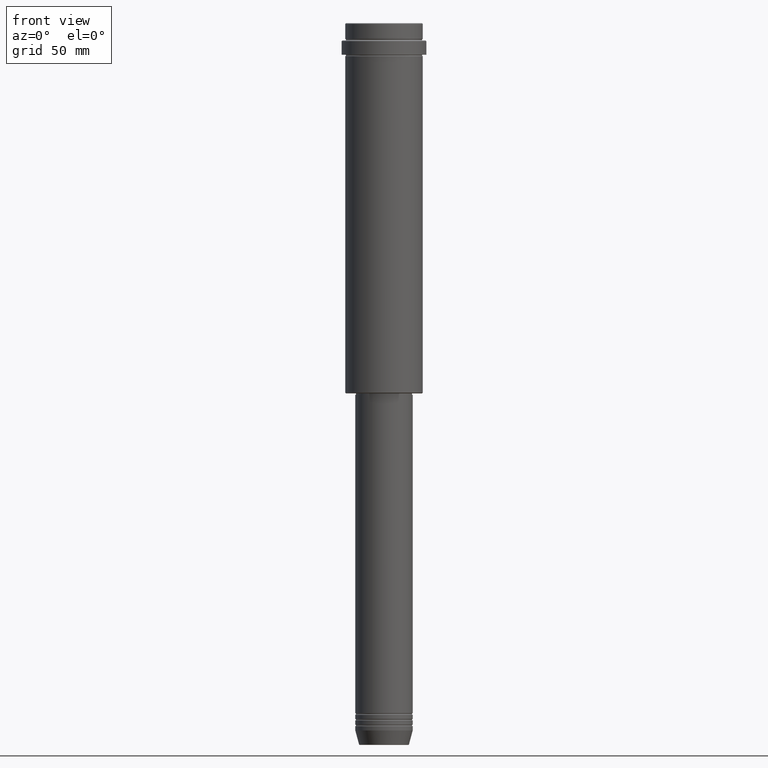
[diagram: clean part render]
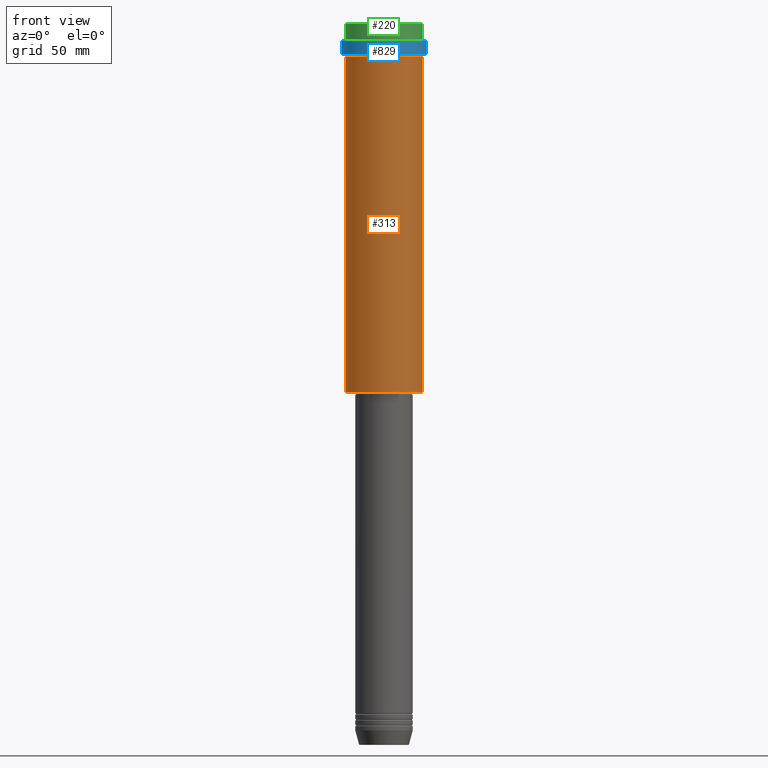
[diagram: same view with three faces highlighted in distinct colors, each labeled with its STEP entity id]
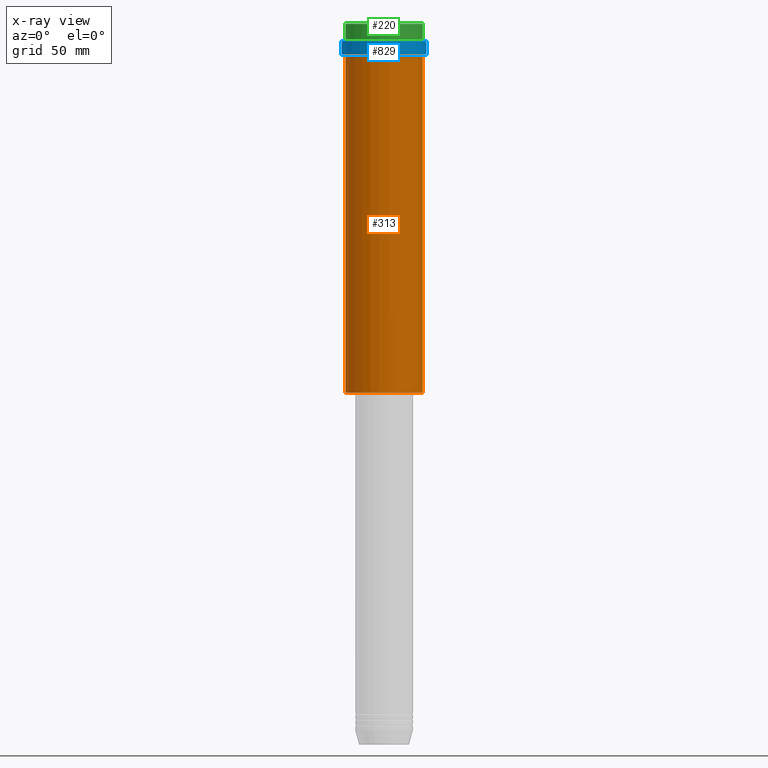
[diagram: x-ray of the same camera — body ghosted, the three highlighted faces saturated]
A machine part, front view with three faces highlighted in distinct colors.
The next image is the same camera in x-ray (body ghosted, the three faces saturated) — at least one of them is partly hidden behind the body in this view.
Their STEP definitions:

[orange] entity #313 — the highlighted cylindrical surface (partial cylindrical patch) has radius 27 mm, axis along (-0, -0, 1).
#1 = AXIS2_PLACEMENT_3D ( 'NONE', #871, #1086, #245 ) ;
#69 = VERTEX_POINT ( 'NONE', #692 ) ;
#72 = VERTEX_POINT ( 'NONE', #1332 ) ;
#117 = CARTESIAN_POINT ( 'NONE',  ( 27.00000000000000355, 0.000000000000000000, 0.000000000000000000 ) ) ;
#194 = CARTESIAN_POINT ( 'NONE',  ( 0.000000000000000000, 0.000000000000000000, -23.00000000000001421 ) ) ;
#203 = DIRECTION ( 'NONE',  ( -0.000000000000000000, -0.000000000000000000, 1.000000000000000000 ) ) ;
#229 = DIRECTION ( 'NONE',  ( -0.000000000000000000, -0.000000000000000000, 1.000000000000000000 ) ) ;
#245 = DIRECTION ( 'NONE',  ( -1.000000000000000000, 0.000000000000000000, 0.000000000000000000 ) ) ;
#263 = AXIS2_PLACEMENT_3D ( 'NONE', #194, #203, #306 ) ;
#306 = DIRECTION ( 'NONE',  ( 1.000000000000000000, 0.000000000000000000, 0.000000000000000000 ) ) ;
#313 = ADVANCED_FACE ( 'NONE', ( #1409 ), #429, .T. ) ;
#317 = ORIENTED_EDGE ( 'NONE', *, *, #1243, .F. ) ;
#389 = VECTOR ( 'NONE', #444, 1000.000000000000000 ) ;
#394 = VECTOR ( 'NONE', #229, 1000.000000000000000 ) ;
#412 = VERTEX_POINT ( 'NONE', #465 ) ;
#429 = CYLINDRICAL_SURFACE ( 'NONE', #722, 27.00000000000000355 ) ;
#444 = DIRECTION ( 'NONE',  ( -0.000000000000000000, -0.000000000000000000, 1.000000000000000000 ) ) ;
#452 = ORIENTED_EDGE ( 'NONE', *, *, #1089, .F. ) ;
#465 = CARTESIAN_POINT ( 'NONE',  ( -27.00000000000000355, 3.306546357697854128E-15, -23.00000000000001421 ) ) ;
#468 = CARTESIAN_POINT ( 'NONE',  ( -27.00000000000000355, 3.306546357697854128E-15, 0.000000000000000000 ) ) ;
#575 = LINE ( 'NONE', #468, #389 ) ;
#609 = CIRCLE ( 'NONE', #1, 27.00000000000000355 ) ;
#692 = CARTESIAN_POINT ( 'NONE',  ( 27.00000000000000355, 0.000000000000000000, -23.00000000000001421 ) ) ;
#722 = AXIS2_PLACEMENT_3D ( 'NONE', #1302, #846, #1081 ) ;
#729 = EDGE_LOOP ( 'NONE', ( #317, #1311, #738, #452 ) ) ;
#738 = ORIENTED_EDGE ( 'NONE', *, *, #1338, .T. ) ;
#788 = CARTESIAN_POINT ( 'NONE',  ( 27.00000000000000355, 0.000000000000000000, -257.5000000000000568 ) ) ;
#846 = DIRECTION ( 'NONE',  ( -0.000000000000000000, -0.000000000000000000, 1.000000000000000000 ) ) ;
#862 = CIRCLE ( 'NONE', #263, 27.00000000000000355 ) ;
#871 = CARTESIAN_POINT ( 'NONE',  ( 0.000000000000000000, 0.000000000000000000, -257.5000000000000568 ) ) ;
#1081 = DIRECTION ( 'NONE',  ( 1.000000000000000000, 0.000000000000000000, 0.000000000000000000 ) ) ;
#1086 = DIRECTION ( 'NONE',  ( -0.000000000000000000, -0.000000000000000000, 1.000000000000000000 ) ) ;
#1089 = EDGE_CURVE ( 'NONE', #412, #69, #862, .T. ) ;
#1220 = LINE ( 'NONE', #117, #394 ) ;
#1243 = EDGE_CURVE ( 'NONE', #72, #412, #575, .T. ) ;
#1302 = CARTESIAN_POINT ( 'NONE',  ( 0.000000000000000000, 0.000000000000000000, 0.000000000000000000 ) ) ;
#1311 = ORIENTED_EDGE ( 'NONE', *, *, #1387, .T. ) ;
#1318 = VERTEX_POINT ( 'NONE', #788 ) ;
#1332 = CARTESIAN_POINT ( 'NONE',  ( -27.00000000000000355, 3.306546357697854128E-15, -257.5000000000000568 ) ) ;
#1338 = EDGE_CURVE ( 'NONE', #1318, #69, #1220, .T. ) ;
#1387 = EDGE_CURVE ( 'NONE', #72, #1318, #609, .T. ) ;
#1409 = FACE_OUTER_BOUND ( 'NONE', #729, .T. ) ;

[blue] entity #829 — the highlighted cylindrical surface (partial cylindrical patch) has radius 29.5 mm, axis along (-0, -0, 1).
#3 = CARTESIAN_POINT ( 'NONE',  ( 29.49999999999999645, 0.000000000000000000, -22.00000000000000711 ) ) ;
#37 = CARTESIAN_POINT ( 'NONE',  ( -29.50000000000000000, 3.612708057484691604E-15, 0.000000000000000000 ) ) ;
#41 = ORIENTED_EDGE ( 'NONE', *, *, #808, .T. ) ;
#68 = CARTESIAN_POINT ( 'NONE',  ( 29.50000000000000000, 0.000000000000000000, 0.000000000000000000 ) ) ;
#85 = DIRECTION ( 'NONE',  ( 0.000000000000000000, 0.000000000000000000, -1.000000000000000000 ) ) ;
#98 = DIRECTION ( 'NONE',  ( 1.000000000000000000, 0.000000000000000000, 0.000000000000000000 ) ) ;
#187 = ORIENTED_EDGE ( 'NONE', *, *, #1309, .F. ) ;
#251 = LINE ( 'NONE', #37, #323 ) ;
#254 = CARTESIAN_POINT ( 'NONE',  ( 29.50000000000000000, 0.000000000000000000, -12.50000000000000355 ) ) ;
#323 = VECTOR ( 'NONE', #999, 1000.000000000000000 ) ;
#416 = VERTEX_POINT ( 'NONE', #254 ) ;
#428 = FACE_OUTER_BOUND ( 'NONE', #716, .T. ) ;
#501 = DIRECTION ( 'NONE',  ( -0.000000000000000000, -0.000000000000000000, 1.000000000000000000 ) ) ;
#506 = CIRCLE ( 'NONE', #773, 29.50000000000000000 ) ;
#626 = CARTESIAN_POINT ( 'NONE',  ( 0.000000000000000000, 0.000000000000000000, -12.50000000000000355 ) ) ;
#716 = EDGE_LOOP ( 'NONE', ( #187, #41, #1121, #737 ) ) ;
#735 = EDGE_CURVE ( 'NONE', #416, #873, #506, .T. ) ;
#737 = ORIENTED_EDGE ( 'NONE', *, *, #735, .T. ) ;
#759 = VERTEX_POINT ( 'NONE', #845 ) ;
#773 = AXIS2_PLACEMENT_3D ( 'NONE', #626, #85, #1048 ) ;
#808 = EDGE_CURVE ( 'NONE', #759, #1203, #1172, .T. ) ;
#829 = ADVANCED_FACE ( 'NONE', ( #428 ), #849, .T. ) ;
#845 = CARTESIAN_POINT ( 'NONE',  ( -29.49999999999999645, 3.612708057484690815E-15, -22.00000000000000711 ) ) ;
#849 = CYLINDRICAL_SURFACE ( 'NONE', #902, 29.50000000000000000 ) ;
#866 = CARTESIAN_POINT ( 'NONE',  ( 0.000000000000000000, 0.000000000000000000, -22.00000000000000711 ) ) ;
#873 = VERTEX_POINT ( 'NONE', #892 ) ;
#892 = CARTESIAN_POINT ( 'NONE',  ( -29.50000000000000000, 3.612708057484691604E-15, -12.50000000000000355 ) ) ;
#902 = AXIS2_PLACEMENT_3D ( 'NONE', #1390, #1179, #1156 ) ;
#924 = VECTOR ( 'NONE', #501, 1000.000000000000000 ) ;
#999 = DIRECTION ( 'NONE',  ( -0.000000000000000000, -0.000000000000000000, 1.000000000000000000 ) ) ;
#1028 = LINE ( 'NONE', #68, #924 ) ;
#1048 = DIRECTION ( 'NONE',  ( 1.000000000000000000, 0.000000000000000000, 0.000000000000000000 ) ) ;
#1060 = EDGE_CURVE ( 'NONE', #1203, #416, #1028, .T. ) ;
#1121 = ORIENTED_EDGE ( 'NONE', *, *, #1060, .T. ) ;
#1156 = DIRECTION ( 'NONE',  ( 1.000000000000000000, 0.000000000000000000, 0.000000000000000000 ) ) ;
#1172 = CIRCLE ( 'NONE', #1226, 29.49999999999999645 ) ;
#1179 = DIRECTION ( 'NONE',  ( -0.000000000000000000, -0.000000000000000000, 1.000000000000000000 ) ) ;
#1203 = VERTEX_POINT ( 'NONE', #3 ) ;
#1226 = AXIS2_PLACEMENT_3D ( 'NONE', #866, #1406, #98 ) ;
#1309 = EDGE_CURVE ( 'NONE', #759, #873, #251, .T. ) ;
#1390 = CARTESIAN_POINT ( 'NONE',  ( 0.000000000000000000, 0.000000000000000000, 0.000000000000000000 ) ) ;
#1406 = DIRECTION ( 'NONE',  ( -0.000000000000000000, -0.000000000000000000, 1.000000000000000000 ) ) ;

[green] entity #220 — the highlighted cylindrical surface (partial cylindrical patch) has radius 27 mm, axis along (-0, -0, 1).
#17 = LINE ( 'NONE', #669, #1056 ) ;
#28 = CIRCLE ( 'NONE', #1224, 27.00000000000000355 ) ;
#153 = EDGE_CURVE ( 'NONE', #859, #852, #935, .T. ) ;
#202 = DIRECTION ( 'NONE',  ( 0.000000000000000000, 0.000000000000000000, -1.000000000000000000 ) ) ;
#208 = DIRECTION ( 'NONE',  ( -0.000000000000000000, -0.000000000000000000, 1.000000000000000000 ) ) ;
#209 = DIRECTION ( 'NONE',  ( 1.000000000000000000, 0.000000000000000000, 0.000000000000000000 ) ) ;
#220 = ADVANCED_FACE ( 'NONE', ( #927 ), #222, .T. ) ;
#222 = CYLINDRICAL_SURFACE ( 'NONE', #390, 27.00000000000000355 ) ;
#282 = CIRCLE ( 'NONE', #1296, 27.00000000000000355 ) ;
#303 = EDGE_CURVE ( 'NONE', #965, #852, #28, .T. ) ;
#309 = DIRECTION ( 'NONE',  ( 1.000000000000000000, 0.000000000000000000, 0.000000000000000000 ) ) ;
#390 = AXIS2_PLACEMENT_3D ( 'NONE', #466, #730, #209 ) ;
#433 = EDGE_CURVE ( 'NONE', #665, #965, #17, .T. ) ;
#436 = CARTESIAN_POINT ( 'NONE',  ( 0.000000000000000000, 0.000000000000000000, -0.4999999999999796274 ) ) ;
#448 = EDGE_LOOP ( 'NONE', ( #529, #1375, #812, #493 ) ) ;
#466 = CARTESIAN_POINT ( 'NONE',  ( 0.000000000000000000, 0.000000000000000000, 0.000000000000000000 ) ) ;
#493 = ORIENTED_EDGE ( 'NONE', *, *, #303, .T. ) ;
#519 = CARTESIAN_POINT ( 'NONE',  ( 0.000000000000000000, 0.000000000000000000, -11.00000000000000178 ) ) ;
#529 = ORIENTED_EDGE ( 'NONE', *, *, #153, .F. ) ;
#665 = VERTEX_POINT ( 'NONE', #828 ) ;
#669 = CARTESIAN_POINT ( 'NONE',  ( 27.00000000000000355, 0.000000000000000000, 0.000000000000000000 ) ) ;
#720 = VECTOR ( 'NONE', #208, 1000.000000000000000 ) ;
#730 = DIRECTION ( 'NONE',  ( -0.000000000000000000, -0.000000000000000000, 1.000000000000000000 ) ) ;
#777 = EDGE_CURVE ( 'NONE', #859, #665, #282, .T. ) ;
#812 = ORIENTED_EDGE ( 'NONE', *, *, #433, .T. ) ;
#828 = CARTESIAN_POINT ( 'NONE',  ( 27.00000000000000355, 0.000000000000000000, -11.00000000000000178 ) ) ;
#852 = VERTEX_POINT ( 'NONE', #1331 ) ;
#857 = DIRECTION ( 'NONE',  ( -0.000000000000000000, -0.000000000000000000, 1.000000000000000000 ) ) ;
#859 = VERTEX_POINT ( 'NONE', #1198 ) ;
#927 = FACE_OUTER_BOUND ( 'NONE', #448, .T. ) ;
#935 = LINE ( 'NONE', #1388, #720 ) ;
#965 = VERTEX_POINT ( 'NONE', #1022 ) ;
#995 = DIRECTION ( 'NONE',  ( -0.000000000000000000, -0.000000000000000000, 1.000000000000000000 ) ) ;
#1022 = CARTESIAN_POINT ( 'NONE',  ( 27.00000000000000355, 0.000000000000000000, -0.4999999999999796274 ) ) ;
#1056 = VECTOR ( 'NONE', #995, 1000.000000000000000 ) ;
#1186 = DIRECTION ( 'NONE',  ( 1.000000000000000000, 0.000000000000000000, 0.000000000000000000 ) ) ;
#1198 = CARTESIAN_POINT ( 'NONE',  ( -27.00000000000000355, 3.306546357697854128E-15, -11.00000000000000178 ) ) ;
#1224 = AXIS2_PLACEMENT_3D ( 'NONE', #436, #202, #309 ) ;
#1296 = AXIS2_PLACEMENT_3D ( 'NONE', #519, #857, #1186 ) ;
#1331 = CARTESIAN_POINT ( 'NONE',  ( -27.00000000000000355, 3.306546357697854128E-15, -0.4999999999999796274 ) ) ;
#1375 = ORIENTED_EDGE ( 'NONE', *, *, #777, .T. ) ;
#1388 = CARTESIAN_POINT ( 'NONE',  ( -27.00000000000000355, 3.306546357697854128E-15, 0.000000000000000000 ) ) ;